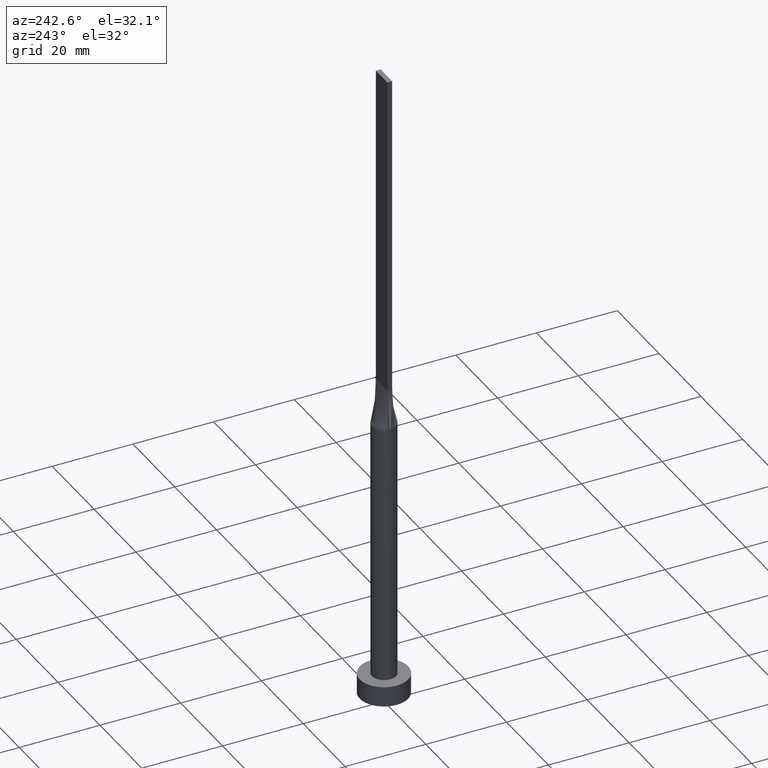
[diagram: clean part render]
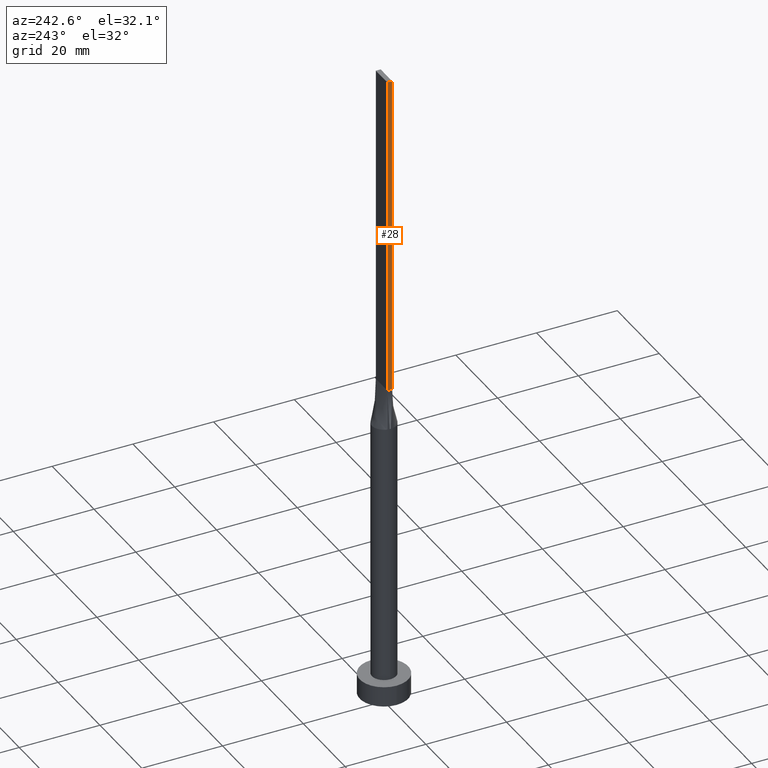
[diagram: same view with one face highlighted and labeled with its STEP entity id]
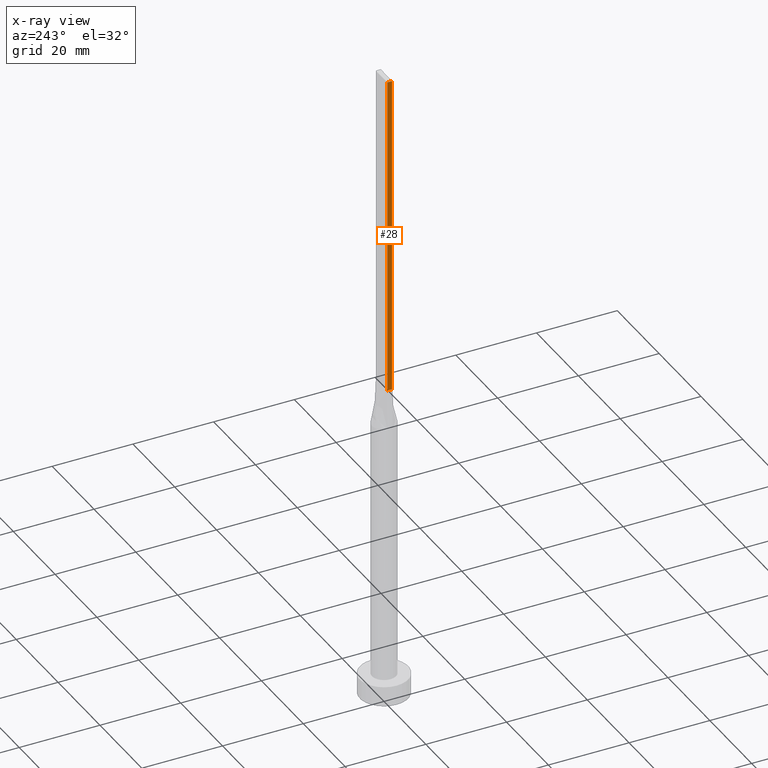
[diagram: x-ray of the same camera — body ghosted, the highlighted face saturated]
A machine part, auxiliary view. The second image highlights one B-rep face of the part: STEP entity #28.
The next image is the same camera in x-ray: the body ghosted, the highlighted face saturated — about 0% of this face is hidden behind the body in this view.
In plain terms, the highlighted planar face has unit normal (1, 0, -0).
Its self-contained STEP definition (entity closure, byte-faithful):
#14 = CARTESIAN_POINT ( 'NONE',  ( -2.750000000000000000, -0.5999999999999994227, 80.00000000000000000 ) ) ;
#18 = AXIS2_PLACEMENT_3D ( 'NONE', #259, #270, #533 ) ;
#28 = ADVANCED_FACE ( 'NONE', ( #393 ), #129, .F. ) ;
#58 = CARTESIAN_POINT ( 'NONE',  ( -2.750000000000000000, 0.6000000000000001998, 80.00000000000000000 ) ) ;
#60 = ORIENTED_EDGE ( 'NONE', *, *, #120, .T. ) ;
#120 = EDGE_CURVE ( 'NONE', #201, #556, #139, .T. ) ;
#129 = PLANE ( 'NONE',  #18 ) ;
#130 = CARTESIAN_POINT ( 'NONE',  ( -2.750000000000000000, -0.5999999999999994227, 160.0000000000000000 ) ) ;
#133 = CARTESIAN_POINT ( 'NONE',  ( -2.750000000000000000, -0.5999999999999994227, 160.0000000000000000 ) ) ;
#139 = LINE ( 'NONE', #447, #495 ) ;
#144 = DIRECTION ( 'NONE',  ( 0.000000000000000000, -1.000000000000000000, 0.000000000000000000 ) ) ;
#161 = EDGE_LOOP ( 'NONE', ( #60, #368, #344, #431 ) ) ;
#188 = VECTOR ( 'NONE', #317, 1000.000000000000000 ) ;
#201 = VERTEX_POINT ( 'NONE', #58 ) ;
#227 = LINE ( 'NONE', #235, #445 ) ;
#235 = CARTESIAN_POINT ( 'NONE',  ( -2.750000000000000000, 0.6000000000000001998, 160.0000000000000000 ) ) ;
#245 = CARTESIAN_POINT ( 'NONE',  ( -2.750000000000000000, 0.6000000000000001998, 160.0000000000000000 ) ) ;
#252 = VECTOR ( 'NONE', #446, 1000.000000000000000 ) ;
#259 = CARTESIAN_POINT ( 'NONE',  ( -2.750000000000000000, 0.6000000000000001998, 160.0000000000000000 ) ) ;
#270 = DIRECTION ( 'NONE',  ( 1.000000000000000000, 0.000000000000000000, -0.000000000000000000 ) ) ;
#271 = CARTESIAN_POINT ( 'NONE',  ( -2.750000000000000000, 0.6000000000000001998, 160.0000000000000000 ) ) ;
#313 = LINE ( 'NONE', #130, #188 ) ;
#317 = DIRECTION ( 'NONE',  ( -0.000000000000000000, -0.000000000000000000, -1.000000000000000000 ) ) ;
#344 = ORIENTED_EDGE ( 'NONE', *, *, #472, .F. ) ;
#351 = DIRECTION ( 'NONE',  ( -0.000000000000000000, -0.000000000000000000, -1.000000000000000000 ) ) ;
#368 = ORIENTED_EDGE ( 'NONE', *, *, #442, .F. ) ;
#393 = FACE_OUTER_BOUND ( 'NONE', #161, .T. ) ;
#427 = EDGE_CURVE ( 'NONE', #549, #201, #227, .T. ) ;
#431 = ORIENTED_EDGE ( 'NONE', *, *, #427, .T. ) ;
#442 = EDGE_CURVE ( 'NONE', #478, #556, #313, .T. ) ;
#445 = VECTOR ( 'NONE', #351, 1000.000000000000000 ) ;
#446 = DIRECTION ( 'NONE',  ( 0.000000000000000000, -1.000000000000000000, 0.000000000000000000 ) ) ;
#447 = CARTESIAN_POINT ( 'NONE',  ( -2.750000000000000000, 0.6000000000000001998, 80.00000000000000000 ) ) ;
#472 = EDGE_CURVE ( 'NONE', #549, #478, #538, .T. ) ;
#478 = VERTEX_POINT ( 'NONE', #133 ) ;
#495 = VECTOR ( 'NONE', #144, 1000.000000000000000 ) ;
#533 = DIRECTION ( 'NONE',  ( -0.000000000000000000, 0.000000000000000000, -1.000000000000000000 ) ) ;
#538 = LINE ( 'NONE', #271, #252 ) ;
#549 = VERTEX_POINT ( 'NONE', #245 ) ;
#556 = VERTEX_POINT ( 'NONE', #14 ) ;